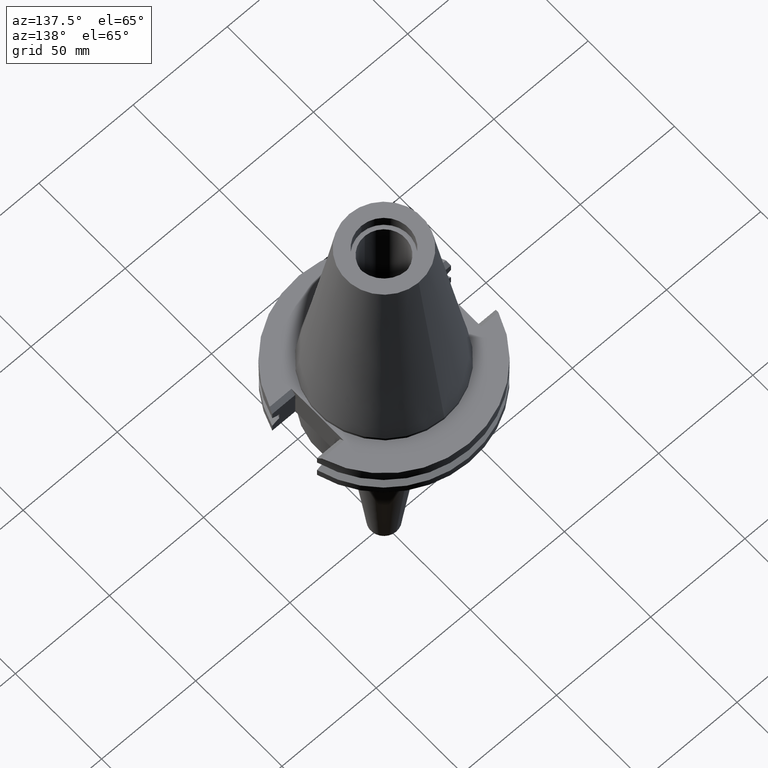
[diagram: clean part render]
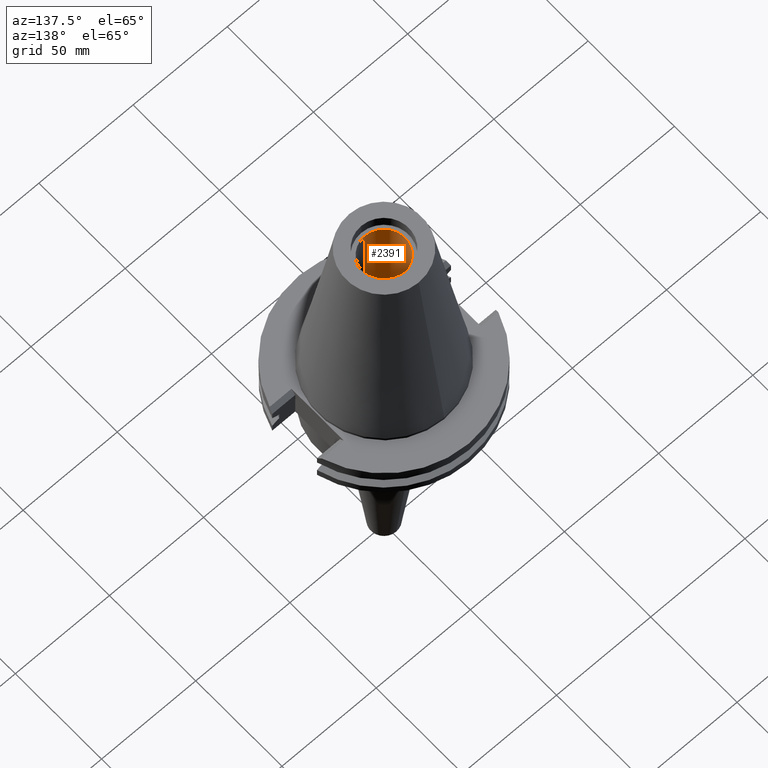
[diagram: same view with one face highlighted and labeled with its STEP entity id]
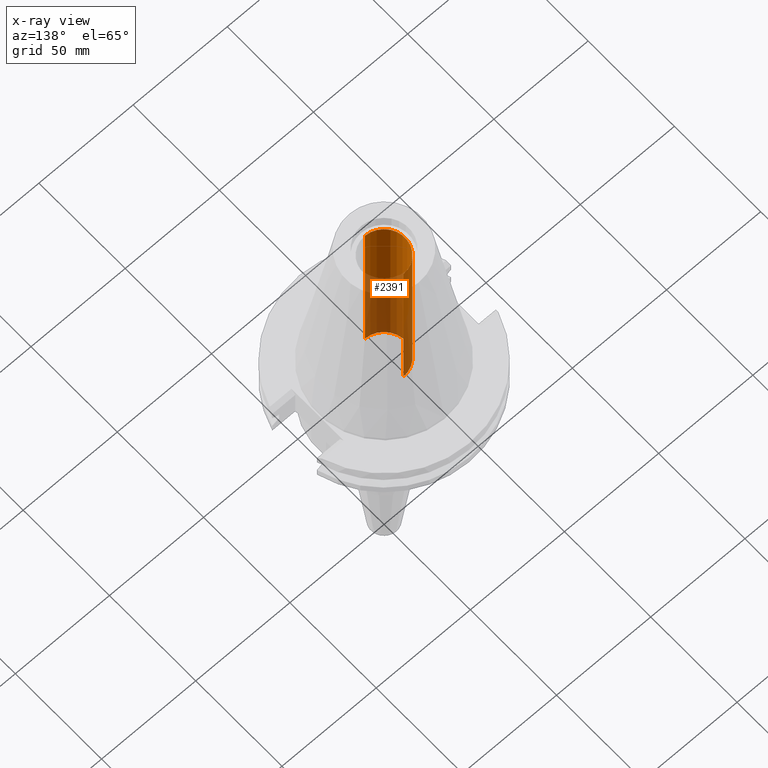
[diagram: x-ray of the same camera — body ghosted, the highlighted face saturated]
A machine part, auxiliary view. The second image highlights one B-rep face of the part: STEP entity #2391.
The next image is the same camera in x-ray: the body ghosted, the highlighted face saturated — about 54% of this face is hidden behind the body in this view.
In plain terms, the highlighted cylindrical surface (edge-blend (fillet) strip) has radius 11.15 mm, axis along (0, 0, -1).
Its self-contained STEP definition (entity closure, byte-faithful):
#1159=CARTESIAN_POINT('',(0.E0,1.398301715266E-14,-1.278976924368E-13));
#1160=DIRECTION('',(0.E0,0.E0,-1.E0));
#1161=DIRECTION('',(0.E0,-1.E0,0.E0));
#1162=AXIS2_PLACEMENT_3D('',#1159,#1160,#1161);
#1174=DIRECTION('',(0.E0,0.E0,1.E0));
#1175=VECTOR('',#1174,9.525E1);
#1176=CARTESIAN_POINT('',(0.E0,1.115E1,-1.563194018672E-13));
#1177=LINE('',#1176,#1175);
#1189=DIRECTION('',(0.E0,0.E0,1.E0));
#1190=VECTOR('',#1189,9.525E1);
#1191=CARTESIAN_POINT('',(0.E0,-1.115E1,-1.563194018672E-13));
#1192=LINE('',#1191,#1190);
#1220=CARTESIAN_POINT('',(0.E0,1.398301715266E-14,9.525E1));
#1221=DIRECTION('',(0.E0,0.E0,1.E0));
#1222=DIRECTION('',(0.E0,1.E0,0.E0));
#1223=AXIS2_PLACEMENT_3D('',#1220,#1221,#1222);
#1254=CARTESIAN_POINT('',(0.E0,-1.115E1,9.525E1));
#1255=CARTESIAN_POINT('',(0.E0,1.115E1,9.525E1));
#1256=VERTEX_POINT('',#1254);
#1257=VERTEX_POINT('',#1255);
#1258=CARTESIAN_POINT('',(0.E0,1.115E1,-1.563194018672E-13));
#1259=VERTEX_POINT('',#1258);
#1260=CARTESIAN_POINT('',(0.E0,-1.115E1,-1.563194018672E-13));
#1261=VERTEX_POINT('',#1260);
#2379=CARTESIAN_POINT('',(0.E0,1.398301715266E-14,1.1418E2));
#2380=DIRECTION('',(0.E0,0.E0,-1.E0));
#2381=DIRECTION('',(0.E0,-1.E0,0.E0));
#2382=AXIS2_PLACEMENT_3D('',#2379,#2380,#2381);
#2383=CYLINDRICAL_SURFACE('',#2382,1.115E1);
#2384=ORIENTED_EDGE('',*,*,#2369,.F.);
#2385=ORIENTED_EDGE('',*,*,#2346,.F.);
#2386=ORIENTED_EDGE('',*,*,#2373,.T.);
#2388=ORIENTED_EDGE('',*,*,#2387,.F.);
#2389=EDGE_LOOP('',(#2384,#2385,#2386,#2388));
#2390=FACE_OUTER_BOUND('',#2389,.F.);
#1163=CIRCLE('',#1162,1.115E1);
#1224=CIRCLE('',#1223,1.115E1);
#2346=EDGE_CURVE('',#1261,#1259,#1163,.T.);
#2369=EDGE_CURVE('',#1259,#1257,#1177,.T.);
#2373=EDGE_CURVE('',#1261,#1256,#1192,.T.);
#2387=EDGE_CURVE('',#1257,#1256,#1224,.T.);
#2391=ADVANCED_FACE('',(#2390),#2383,.F.);